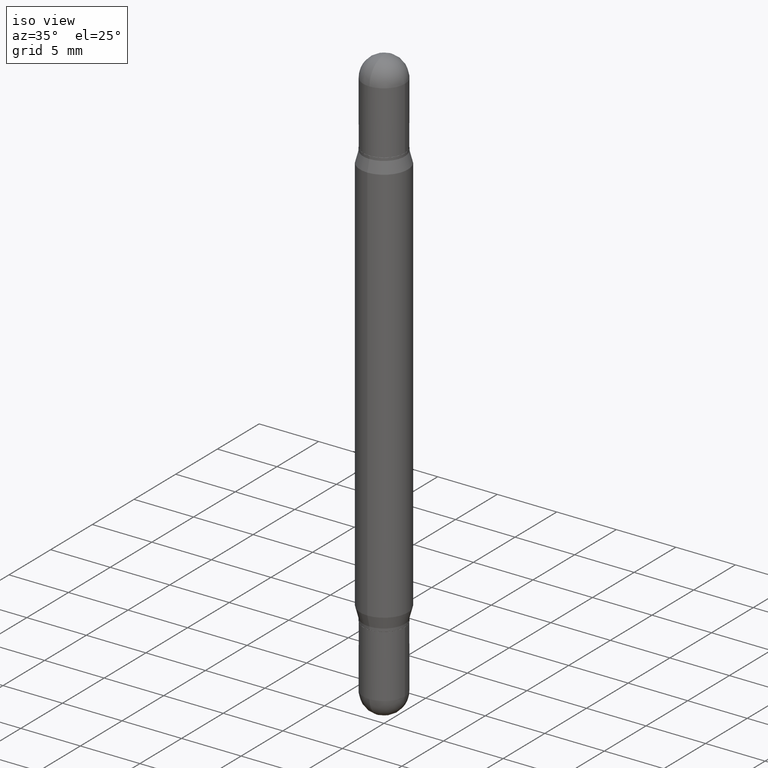
[diagram: clean part render]
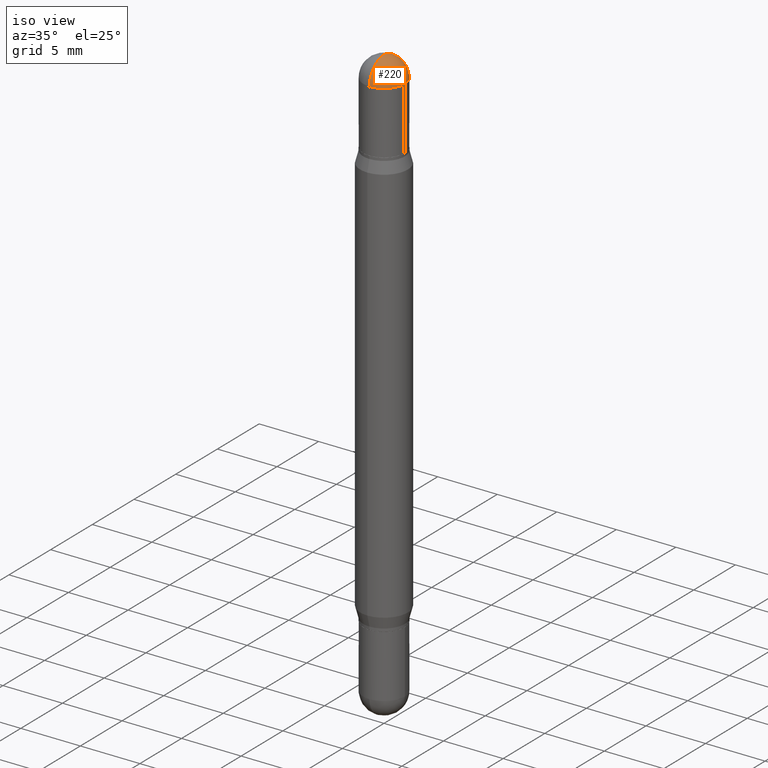
[diagram: same view with one face highlighted and labeled with its STEP entity id]
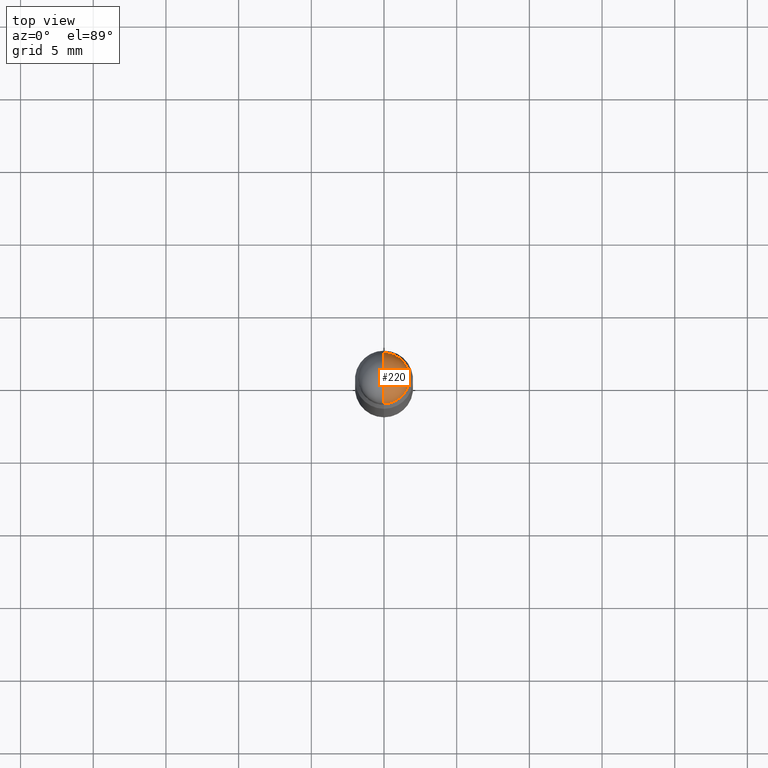
[diagram: same view with one face highlighted and labeled with its STEP entity id]
A machine part, iso view. The second image highlights one B-rep face of the part: STEP entity #220.
A second angle (top view) of the same face is appended — the face is thin or edge-on in the first view.
In plain terms, the highlighted spherical surface has radius 1.7501 mm.
Its self-contained STEP definition (entity closure, byte-faithful):
#6 = VERTEX_POINT ( 'NONE', #720 ) ;
#23 = SPHERICAL_SURFACE ( 'NONE', #398, 0.06889999999999996128 ) ;
#29 = VERTEX_POINT ( 'NONE', #895 ) ;
#48 = CIRCLE ( 'NONE', #176, 0.06889999999999996128 ) ;
#69 = ORIENTED_EDGE ( 'NONE', *, *, #709, .F. ) ;
#106 = AXIS2_PLACEMENT_3D ( 'NONE', #1062, #817, #734 ) ;
#176 = AXIS2_PLACEMENT_3D ( 'NONE', #660, #1090, #819 ) ;
#205 = DIRECTION ( 'NONE',  ( 6.982962677686265922E-15, 1.000000000000000000, -3.469328003564922263E-15 ) ) ;
#220 = ADVANCED_FACE ( 'NONE', ( #455 ), #23, .T. ) ;
#264 = DIRECTION ( 'NONE',  ( 2.445468806185136597E-29, 3.479614466977828254E-15, 1.000000000000000000 ) ) ;
#281 = DIRECTION ( 'NONE',  ( 1.000000000000000000, -6.982962677686265922E-15, -1.566701062080016683E-31 ) ) ;
#327 = DIRECTION ( 'NONE',  ( -1.000000000000000000, 6.982962677686265922E-15, 1.566701062080016245E-31 ) ) ;
#354 = ORIENTED_EDGE ( 'NONE', *, *, #984, .T. ) ;
#383 = AXIS2_PLACEMENT_3D ( 'NONE', #414, #327, #666 ) ;
#398 = AXIS2_PLACEMENT_3D ( 'NONE', #714, #281, #205 ) ;
#414 = CARTESIAN_POINT ( 'NONE',  ( 4.679918503997674770E-29, -2.020109070626143082E-16, -0.06889999999999990576 ) ) ;
#443 = CARTESIAN_POINT ( 'NONE',  ( 4.851357352610053575E-29, 4.195343793522055789E-17, 5.122214988120493535E-17 ) ) ;
#455 = FACE_OUTER_BOUND ( 'NONE', #577, .T. ) ;
#577 = EDGE_LOOP ( 'NONE', ( #69, #1092, #912, #354 ) ) ;
#660 = CARTESIAN_POINT ( 'NONE',  ( 4.679918503997674770E-29, -2.020109070626143082E-16, -0.06889999999999990576 ) ) ;
#666 = DIRECTION ( 'NONE',  ( -6.982962677686265922E-15, -1.000000000000000000, 0.000000000000000000 ) ) ;
#702 = EDGE_CURVE ( 'NONE', #1020, #29, #48, .T. ) ;
#709 = EDGE_CURVE ( 'NONE', #1020, #775, #1066, .T. ) ;
#714 = CARTESIAN_POINT ( 'NONE',  ( 4.679918503997674770E-29, -2.020109070626143082E-16, -0.06889999999999990576 ) ) ;
#720 = CARTESIAN_POINT ( 'NONE',  ( 0.06890000000000008618, -1.092169689062953952E-15, -0.06889999999999990576 ) ) ;
#734 = DIRECTION ( 'NONE',  ( 1.000000000000000000, -6.982962677686265922E-15, 0.000000000000000000 ) ) ;
#775 = VERTEX_POINT ( 'NONE', #939 ) ;
#791 = CIRCLE ( 'NONE', #106, 0.06890000000000007230 ) ;
#817 = DIRECTION ( 'NONE',  ( 2.445468806185136597E-29, 3.479614466977828254E-15, 1.000000000000000000 ) ) ;
#819 = DIRECTION ( 'NONE',  ( 6.860497997771530774E-15, 1.000000000000000000, 0.000000000000000000 ) ) ;
#824 = EDGE_CURVE ( 'NONE', #29, #6, #791, .T. ) ;
#844 = AXIS2_PLACEMENT_3D ( 'NONE', #871, #264, #1046 ) ;
#871 = CARTESIAN_POINT ( 'NONE',  ( 4.645412544229285965E-29, -2.514254054082095494E-16, -0.06889999999999990576 ) ) ;
#895 = CARTESIAN_POINT ( 'NONE',  ( -4.726883120464119841E-16, -0.06890000000000023883, -0.06889999999999966984 ) ) ;
#912 = ORIENTED_EDGE ( 'NONE', *, *, #824, .T. ) ;
#939 = CARTESIAN_POINT ( 'NONE',  ( 4.811261284926304785E-16, 0.06889999999999979474, -0.06890000000000015556 ) ) ;
#984 = EDGE_CURVE ( 'NONE', #6, #775, #1038, .T. ) ;
#1020 = VERTEX_POINT ( 'NONE', #443 ) ;
#1038 = CIRCLE ( 'NONE', #844, 0.06890000000000007230 ) ;
#1046 = DIRECTION ( 'NONE',  ( 1.000000000000000000, -6.982962677686265922E-15, 0.000000000000000000 ) ) ;
#1062 = CARTESIAN_POINT ( 'NONE',  ( 4.645412544229285965E-29, -2.514254054082095494E-16, -0.06889999999999990576 ) ) ;
#1066 = CIRCLE ( 'NONE', #383, 0.06889999999999996128 ) ;
#1090 = DIRECTION ( 'NONE',  ( 1.000000000000000000, -6.860497997771530774E-15, -5.827999781331232286E-31 ) ) ;
#1092 = ORIENTED_EDGE ( 'NONE', *, *, #702, .T. ) ;